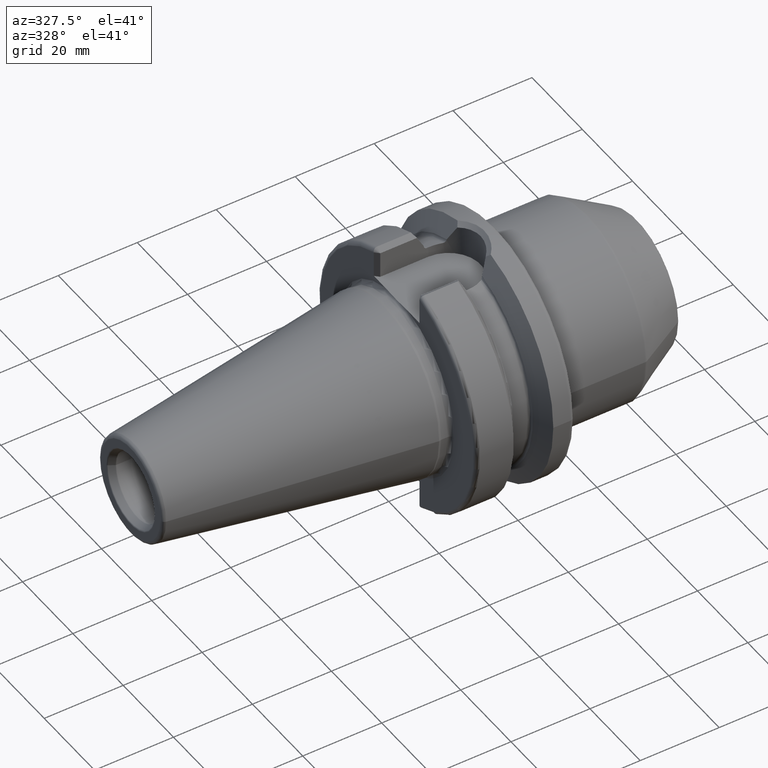
[diagram: clean part render]
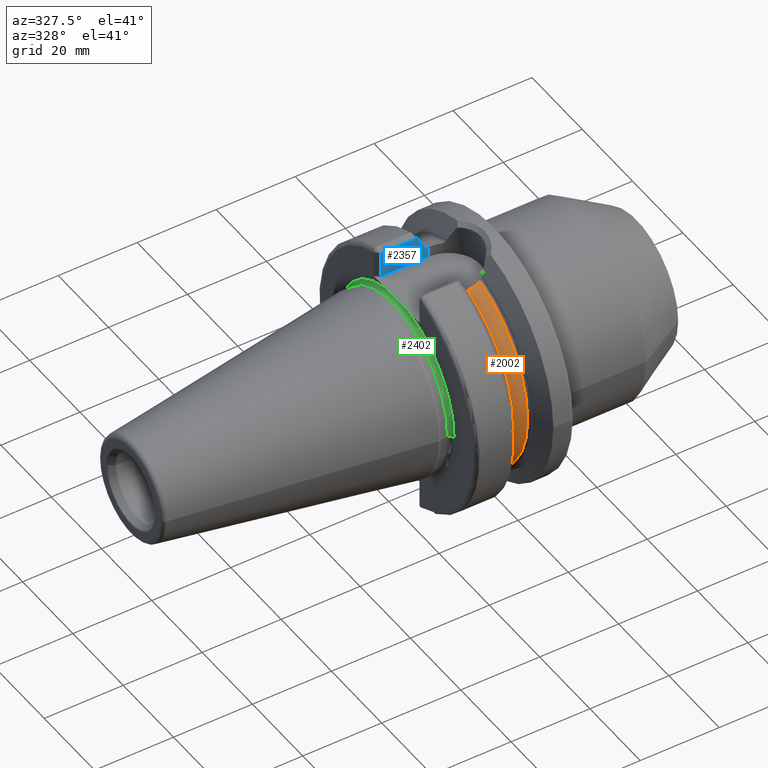
[diagram: same view with three faces highlighted in distinct colors, each labeled with its STEP entity id]
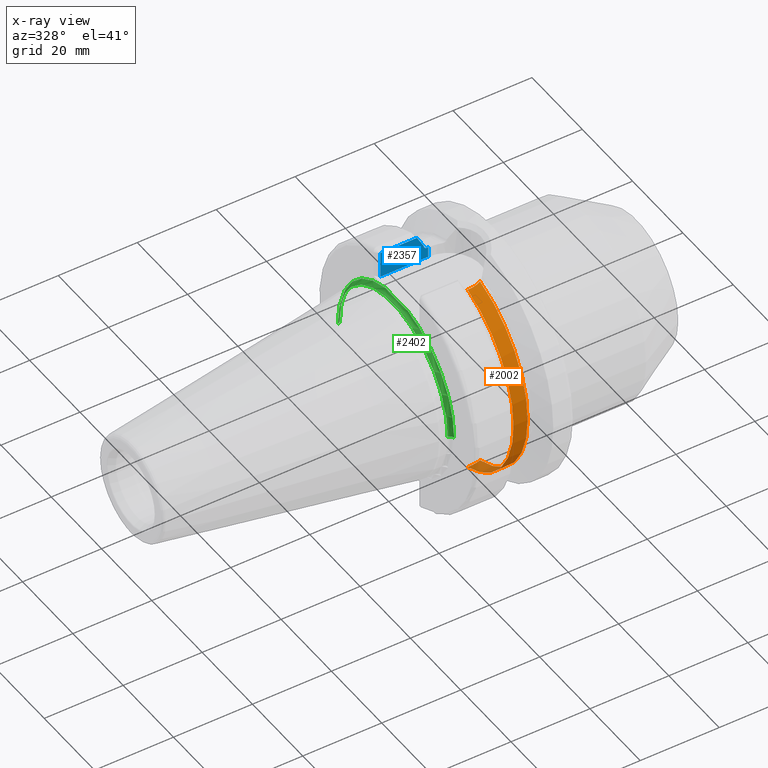
[diagram: x-ray of the same camera — body ghosted, the three highlighted faces saturated]
A machine part, auxiliary view with three faces highlighted in distinct colors.
The next image is the same camera in x-ray (body ghosted, the three faces saturated) — at least one of them is partly hidden behind the body in this view.
Their STEP definitions:

[orange] entity #2002 — the highlighted cylindrical surface (partial cylindrical patch) has radius 26.375 mm, axis along (1, 0, 0).
#308=DIRECTION('',(1.E0,0.E0,0.E0));
#309=VECTOR('',#308,3.425E-1);
#310=CARTESIAN_POINT('',(1.48125E1,-8.095E0,-2.510202382279E1));
#311=LINE('',#310,#309);
#367=CARTESIAN_POINT('',(1.83875E1,-7.421588020768E0,-2.530929979770E1));
#368=CARTESIAN_POINT('',(1.804170386611E1,-7.572200800631E0,-2.526513476699E1));
#369=CARTESIAN_POINT('',(1.734035783411E1,-7.820815511030E0,-2.518941465742E1));
#370=CARTESIAN_POINT('',(1.625266243851E1,-8.045449936191E0,-2.511808739805E1));
#371=CARTESIAN_POINT('',(1.552274116086E1,-8.095E0,-2.510202382279E1));
#372=CARTESIAN_POINT('',(1.5155E1,-8.095E0,-2.510202382279E1));
#374=CARTESIAN_POINT('',(1.48125E1,0.E0,0.E0));
#375=DIRECTION('',(-1.E0,0.E0,0.E0));
#376=DIRECTION('',(0.E0,-3.069194312796E-1,-9.517355003902E-1));
#377=AXIS2_PLACEMENT_3D('',#374,#375,#376);
#379=CARTESIAN_POINT('',(1.5155E1,-8.095E0,2.510202382279E1));
#380=CARTESIAN_POINT('',(1.552274116086E1,-8.095E0,2.510202382279E1));
#381=CARTESIAN_POINT('',(1.625266243851E1,-8.045449936191E0,2.511808739805E1));
#382=CARTESIAN_POINT('',(1.734035783411E1,-7.820815511030E0,2.518941465742E1));
#383=CARTESIAN_POINT('',(1.804170386611E1,-7.572200800631E0,2.526513476699E1));
#384=CARTESIAN_POINT('',(1.83875E1,-7.421588020768E0,2.530929979770E1));
#465=CARTESIAN_POINT('',(1.83875E1,0.E0,0.E0));
#466=DIRECTION('',(-1.E0,0.E0,0.E0));
#467=DIRECTION('',(0.E0,-2.813872235362E-1,-9.595943051262E-1));
#468=AXIS2_PLACEMENT_3D('',#465,#466,#467);
#551=DIRECTION('',(1.E0,0.E0,0.E0));
#552=VECTOR('',#551,3.425E-1);
#553=CARTESIAN_POINT('',(1.48125E1,-8.095E0,2.510202382279E1));
#554=LINE('',#553,#552);
#1310=CARTESIAN_POINT('',(1.48125E1,-8.095E0,-2.510202382279E1));
#1311=CARTESIAN_POINT('',(1.48125E1,-8.095E0,2.510202382279E1));
#1312=VERTEX_POINT('',#1310);
#1313=VERTEX_POINT('',#1311);
#1322=CARTESIAN_POINT('',(1.83875E1,-7.421588020768E0,-2.530929979770E1));
#1323=CARTESIAN_POINT('',(1.83875E1,-7.421588020768E0,2.530929979770E1));
#1324=VERTEX_POINT('',#1322);
#1325=VERTEX_POINT('',#1323);
#1451=CARTESIAN_POINT('',(1.5155E1,-8.095E0,2.510202382279E1));
#1452=VERTEX_POINT('',#1451);
#1459=CARTESIAN_POINT('',(1.5155E1,-8.095E0,-2.510202382279E1));
#1460=VERTEX_POINT('',#1459);
#1985=CARTESIAN_POINT('',(1.106999478413E1,0.E0,0.E0));
#1986=DIRECTION('',(1.E0,0.E0,0.E0));
#1987=DIRECTION('',(0.E0,-1.E0,0.E0));
#1988=AXIS2_PLACEMENT_3D('',#1985,#1986,#1987);
#1989=CYLINDRICAL_SURFACE('',#1988,2.6375E1);
#1991=ORIENTED_EDGE('',*,*,#1990,.T.);
#1992=ORIENTED_EDGE('',*,*,#1924,.F.);
#1993=ORIENTED_EDGE('',*,*,#1958,.T.);
#1995=ORIENTED_EDGE('',*,*,#1994,.T.);
#1997=ORIENTED_EDGE('',*,*,#1996,.T.);
#1999=ORIENTED_EDGE('',*,*,#1998,.F.);
#2000=EDGE_LOOP('',(#1991,#1992,#1993,#1995,#1997,#1999));
#2001=FACE_OUTER_BOUND('',#2000,.F.);
#2002=ADVANCED_FACE('',(#2001),#1989,.T.);
#373=B_SPLINE_CURVE_WITH_KNOTS('',3,(#367,#368,#369,#370,#371,#372),
.UNSPECIFIED.,.F.,.F.,(4,1,1,4),(0.E0,3.333333333333E-1,6.666666666667E-1,1.E0),
.UNSPECIFIED.);
#378=CIRCLE('',#377,2.6375E1);
#385=B_SPLINE_CURVE_WITH_KNOTS('',3,(#379,#380,#381,#382,#383,#384),
.UNSPECIFIED.,.F.,.F.,(4,1,1,4),(0.E0,3.333333333333E-1,6.666666666667E-1,1.E0),
.UNSPECIFIED.);
#469=CIRCLE('',#468,2.6375E1);
#1924=EDGE_CURVE('',#1312,#1460,#311,.T.);
#1958=EDGE_CURVE('',#1312,#1313,#378,.T.);
#1990=EDGE_CURVE('',#1324,#1460,#373,.T.);
#1994=EDGE_CURVE('',#1313,#1452,#554,.T.);
#1996=EDGE_CURVE('',#1452,#1325,#385,.T.);
#1998=EDGE_CURVE('',#1324,#1325,#469,.T.);

[blue] entity #2357 — the highlighted planar face has unit normal (0, 1, 0).
#642=DIRECTION('',(6.771558882016E-14,0.E0,1.E0));
#643=VECTOR('',#642,5.246522611264E-2);
#644=CARTESIAN_POINT('',(1.40625E1,8.095E0,2.588892813540E1));
#645=LINE('',#644,#643);
#646=CARTESIAN_POINT('',(1.48125E1,8.095E0,2.510202382279E1));
#647=CARTESIAN_POINT('',(1.474626583175E1,8.095E0,2.510202382279E1));
#648=CARTESIAN_POINT('',(1.462196122728E1,8.095E0,2.512019824361E1));
#649=CARTESIAN_POINT('',(1.446015344720E1,8.095E0,2.518681119149E1));
#650=CARTESIAN_POINT('',(1.432194250541E1,8.095E0,2.528577048685E1));
#651=CARTESIAN_POINT('',(1.421112933741E1,8.095E0,2.540882158997E1));
#652=CARTESIAN_POINT('',(1.412599264270E1,8.095E0,2.555700431287E1));
#653=CARTESIAN_POINT('',(1.407429746920E1,8.095E0,2.571931087657E1));
#654=CARTESIAN_POINT('',(1.40625E1,8.095E0,2.583143069402E1));
#655=CARTESIAN_POINT('',(1.40625E1,8.095E0,2.588892813540E1));
#657=DIRECTION('',(1.E0,0.E0,0.E0));
#658=VECTOR('',#657,3.425E-1);
#659=CARTESIAN_POINT('',(1.48125E1,8.095E0,2.510202382279E1));
#660=LINE('',#659,#658);
#661=DIRECTION('',(0.E0,0.E0,1.E0));
#662=VECTOR('',#661,2.652023822792E0);
#663=CARTESIAN_POINT('',(1.5155E1,8.095E0,2.245E1));
#664=LINE('',#663,#662);
#665=DIRECTION('',(0.E0,0.E0,1.E0));
#666=VECTOR('',#665,6.649289188054E0);
#667=CARTESIAN_POINT('',(3.E0,8.095E0,2.245E1));
#668=LINE('',#667,#666);
#669=DIRECTION('',(1.E0,0.E0,0.E0));
#670=VECTOR('',#669,9.313598297306E0);
#671=CARTESIAN_POINT('',(3.E0,8.095E0,2.909928918805E1));
#672=LINE('',#671,#670);
#673=CARTESIAN_POINT('',(1.40625E1,8.095E0,2.594139336151E1));
#674=CARTESIAN_POINT('',(1.387619304722E1,8.095E0,2.627943267022E1));
#675=CARTESIAN_POINT('',(1.349822147379E1,8.095E0,2.696405968402E1));
#676=CARTESIAN_POINT('',(1.291532431893E1,8.095E0,2.801651320770E1));
#677=CARTESIAN_POINT('',(1.251595456147E1,8.095E0,2.873548878206E1));
#678=CARTESIAN_POINT('',(1.231359829731E1,8.095E0,2.909928918805E1));
#692=DIRECTION('',(-1.E0,0.E0,0.E0));
#693=VECTOR('',#692,1.2155E1);
#694=CARTESIAN_POINT('',(1.5155E1,8.095E0,2.245E1));
#695=LINE('',#694,#693);
#1306=CARTESIAN_POINT('',(1.40625E1,8.095E0,2.588892813540E1));
#1308=VERTEX_POINT('',#1306);
#1314=CARTESIAN_POINT('',(1.48125E1,8.095E0,2.510202382279E1));
#1316=VERTEX_POINT('',#1314);
#1343=CARTESIAN_POINT('',(1.40625E1,8.095E0,2.594139336151E1));
#1345=VERTEX_POINT('',#1343);
#1433=CARTESIAN_POINT('',(1.5155E1,8.095E0,2.245E1));
#1435=VERTEX_POINT('',#1433);
#1448=CARTESIAN_POINT('',(1.5155E1,8.095E0,2.510202382279E1));
#1449=VERTEX_POINT('',#1448);
#1450=VERTEX_POINT('',#678);
#1488=CARTESIAN_POINT('',(3.E0,8.095E0,2.245E1));
#1489=CARTESIAN_POINT('',(3.E0,8.095E0,2.909928918805E1));
#1490=VERTEX_POINT('',#1488);
#1491=VERTEX_POINT('',#1489);
#2340=CARTESIAN_POINT('',(1.5155E1,8.095E0,2.245E1));
#2341=DIRECTION('',(0.E0,1.E0,0.E0));
#2342=DIRECTION('',(-1.E0,0.E0,0.E0));
#2343=AXIS2_PLACEMENT_3D('',#2340,#2341,#2342);
#2344=PLANE('',#2343);
#2345=ORIENTED_EDGE('',*,*,#1794,.F.);
#2346=ORIENTED_EDGE('',*,*,#1948,.F.);
#2347=ORIENTED_EDGE('',*,*,#1980,.T.);
#2348=ORIENTED_EDGE('',*,*,#2097,.F.);
#2350=ORIENTED_EDGE('',*,*,#2349,.T.);
#2352=ORIENTED_EDGE('',*,*,#2351,.T.);
#2353=ORIENTED_EDGE('',*,*,#2333,.T.);
#2354=ORIENTED_EDGE('',*,*,#1826,.F.);
#2355=EDGE_LOOP('',(#2345,#2346,#2347,#2348,#2350,#2352,#2353,#2354));
#2356=FACE_OUTER_BOUND('',#2355,.F.);
#2357=ADVANCED_FACE('',(#2356),#2344,.F.);
#656=B_SPLINE_CURVE_WITH_KNOTS('',3,(#646,#647,#648,#649,#650,#651,#652,#653,
#654,#655),.UNSPECIFIED.,.F.,.F.,(4,1,1,1,1,1,1,4),(0.E0,1.428571428571E-1,
2.857142857143E-1,4.285714285714E-1,5.714285714286E-1,7.142857142857E-1,
8.571428571429E-1,1.E0),.UNSPECIFIED.);
#679=B_SPLINE_CURVE_WITH_KNOTS('',3,(#673,#674,#675,#676,#677,#678),
.UNSPECIFIED.,.F.,.F.,(4,1,1,4),(0.E0,3.333333333333E-1,6.666666666667E-1,1.E0),
.UNSPECIFIED.);
#1794=EDGE_CURVE('',#1308,#1345,#645,.T.);
#1826=EDGE_CURVE('',#1345,#1450,#679,.T.);
#1948=EDGE_CURVE('',#1316,#1308,#656,.T.);
#1980=EDGE_CURVE('',#1316,#1449,#660,.T.);
#2097=EDGE_CURVE('',#1435,#1449,#664,.T.);
#2333=EDGE_CURVE('',#1491,#1450,#672,.T.);
#2349=EDGE_CURVE('',#1435,#1490,#695,.T.);
#2351=EDGE_CURVE('',#1490,#1491,#668,.T.);

[green] entity #2402 — the highlighted toroidal blend (fillet) surface has major radius 22.875 mm and minor (blend) radius 1 mm.
#78=CARTESIAN_POINT('',(1.E0,0.E0,0.E0));
#79=DIRECTION('',(1.E0,0.E0,0.E0));
#80=DIRECTION('',(0.E0,1.E0,0.E0));
#81=AXIS2_PLACEMENT_3D('',#78,#79,#80);
#101=CARTESIAN_POINT('',(1.E0,2.2875E1,0.E0));
#102=DIRECTION('',(0.E0,0.E0,-1.E0));
#103=DIRECTION('',(1.E0,0.E0,0.E0));
#104=AXIS2_PLACEMENT_3D('',#101,#102,#103);
#106=CARTESIAN_POINT('',(1.E0,-2.2875E1,0.E0));
#107=DIRECTION('',(0.E0,0.E0,1.E0));
#108=DIRECTION('',(1.E0,0.E0,0.E0));
#109=AXIS2_PLACEMENT_3D('',#106,#107,#108);
#709=CARTESIAN_POINT('',(2.E0,0.E0,0.E0));
#710=DIRECTION('',(1.E0,0.E0,0.E0));
#711=DIRECTION('',(0.E0,1.E0,0.E0));
#712=AXIS2_PLACEMENT_3D('',#709,#710,#711);
#714=CARTESIAN_POINT('',(2.E0,-4.388977671395E0,2.245E1));
#715=CARTESIAN_POINT('',(2.E0,-3.970864393558E0,2.245E1));
#716=CARTESIAN_POINT('',(1.981114905487E0,-3.134790252725E0,2.245E1));
#717=CARTESIAN_POINT('',(1.935909306649E0,-1.881114481277E0,2.245E1));
#718=CARTESIAN_POINT('',(1.903922826077E0,-6.271978192649E-1,2.245E1));
#719=CARTESIAN_POINT('',(1.903921553166E0,6.271174205746E-1,2.245E1));
#720=CARTESIAN_POINT('',(1.935907277499E0,1.881058976319E0,2.245E1));
#721=CARTESIAN_POINT('',(1.981114329557E0,3.134769380755E0,2.245E1));
#722=CARTESIAN_POINT('',(2.E0,3.970858027314E0,2.245E1));
#723=CARTESIAN_POINT('',(2.E0,4.388977671395E0,2.245E1));
#725=CARTESIAN_POINT('',(2.E0,0.E0,0.E0));
#726=DIRECTION('',(1.E0,0.E0,0.E0));
#727=DIRECTION('',(0.E0,-1.918678763451E-1,9.814207650273E-1));
#728=AXIS2_PLACEMENT_3D('',#725,#726,#727);
#1366=CARTESIAN_POINT('',(2.E0,2.2875E1,0.E0));
#1367=CARTESIAN_POINT('',(1.E0,2.1875E1,0.E0));
#1368=VERTEX_POINT('',#1366);
#1369=VERTEX_POINT('',#1367);
#1372=CARTESIAN_POINT('',(2.E0,-2.2875E1,0.E0));
#1373=CARTESIAN_POINT('',(1.E0,-2.1875E1,0.E0));
#1374=VERTEX_POINT('',#1372);
#1375=VERTEX_POINT('',#1373);
#1436=CARTESIAN_POINT('',(2.E0,4.388977671395E0,2.245E1));
#1437=VERTEX_POINT('',#1436);
#1438=CARTESIAN_POINT('',(2.E0,-4.388977671395E0,2.245E1));
#1439=VERTEX_POINT('',#1438);
#2389=CARTESIAN_POINT('',(1.E0,0.E0,0.E0));
#2390=DIRECTION('',(1.E0,0.E0,0.E0));
#2391=DIRECTION('',(0.E0,-1.E0,0.E0));
#2392=AXIS2_PLACEMENT_3D('',#2389,#2390,#2391);
#2393=TOROIDAL_SURFACE('',#2392,2.2875E1,1.E0);
#2394=ORIENTED_EDGE('',*,*,#1715,.T.);
#2395=ORIENTED_EDGE('',*,*,#2367,.F.);
#2396=ORIENTED_EDGE('',*,*,#1733,.T.);
#2397=ORIENTED_EDGE('',*,*,#1693,.T.);
#2398=ORIENTED_EDGE('',*,*,#1662,.F.);
#2399=ORIENTED_EDGE('',*,*,#1690,.F.);
#2400=EDGE_LOOP('',(#2394,#2395,#2396,#2397,#2398,#2399));
#2401=FACE_OUTER_BOUND('',#2400,.F.);
#2402=ADVANCED_FACE('',(#2401),#2393,.F.);
#82=CIRCLE('',#81,2.1875E1);
#105=CIRCLE('',#104,1.E0);
#110=CIRCLE('',#109,1.E0);
#713=CIRCLE('',#712,2.2875E1);
#724=B_SPLINE_CURVE_WITH_KNOTS('',3,(#714,#715,#716,#717,#718,#719,#720,#721,
#722,#723),.UNSPECIFIED.,.F.,.F.,(4,1,1,1,1,1,1,4),(0.E0,1.428571428571E-1,
2.857142857143E-1,4.285714285714E-1,5.714285714286E-1,7.142857142857E-1,
8.571428571429E-1,1.E0),.UNSPECIFIED.);
#729=CIRCLE('',#728,2.2875E1);
#1662=EDGE_CURVE('',#1369,#1375,#82,.T.);
#1690=EDGE_CURVE('',#1368,#1369,#105,.T.);
#1693=EDGE_CURVE('',#1374,#1375,#110,.T.);
#1715=EDGE_CURVE('',#1368,#1437,#713,.T.);
#1733=EDGE_CURVE('',#1439,#1374,#729,.T.);
#2367=EDGE_CURVE('',#1439,#1437,#724,.T.);